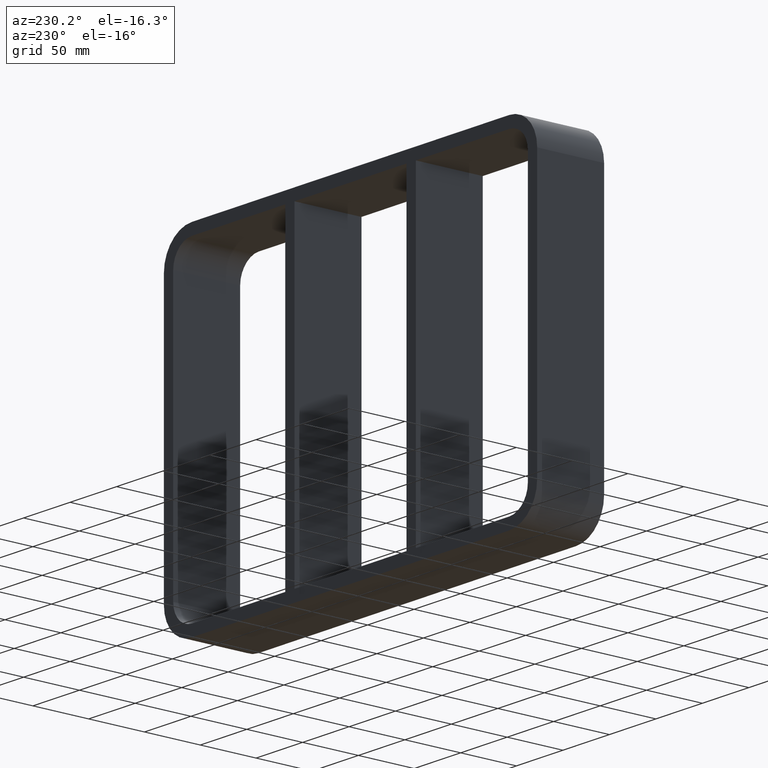
[diagram: clean part render]
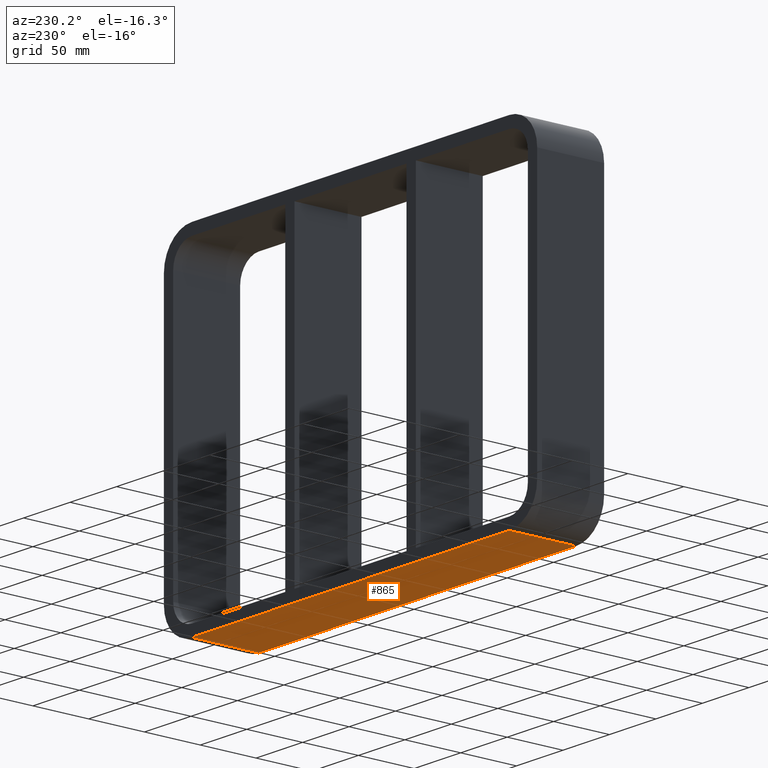
[diagram: same view with one face highlighted and labeled with its STEP entity id]
A machine part, auxiliary view. The second image highlights one B-rep face of the part: STEP entity #865.
In plain terms, the highlighted planar face has unit normal (0, 0, -1).
Its self-contained STEP definition (entity closure, byte-faithful):
#401=CARTESIAN_POINT('',(170.75000000000003,57.0,-149.0));
#402=VERTEX_POINT('',#401);
#420=CARTESIAN_POINT('',(170.75000000000003,-3.0,-149.0));
#421=VERTEX_POINT('',#420);
#429=CARTESIAN_POINT('',(170.75000000000003,-3.0,-149.0));
#430=DIRECTION('',(0.0,1.0,0.0));
#431=VECTOR('',#430,60.0);
#432=LINE('',#429,#431);
#433=EDGE_CURVE('',#421,#402,#432,.T.);
#486=CARTESIAN_POINT('',(-170.75000000000003,-3.0,-149.0));
#487=VERTEX_POINT('',#486);
#495=CARTESIAN_POINT('',(-170.75000000000003,-3.0,-149.0));
#496=DIRECTION('',(1.0,0.0,0.0));
#497=VECTOR('',#496,341.50000000000006);
#498=LINE('',#495,#497);
#499=EDGE_CURVE('',#487,#421,#498,.T.);
#624=CARTESIAN_POINT('',(-170.75000000000003,57.0,-149.0));
#625=VERTEX_POINT('',#624);
#633=CARTESIAN_POINT('',(-170.75000000000003,57.0,-149.0));
#634=DIRECTION('',(0.0,-1.0,0.0));
#635=VECTOR('',#634,60.0);
#636=LINE('',#633,#635);
#637=EDGE_CURVE('',#625,#487,#636,.T.);
#849=CARTESIAN_POINT('',(200.75000000000003,0.0,-149.0));
#850=DIRECTION('',(0.0,0.0,-1.0));
#851=DIRECTION('',(-1.0,0.0,0.0));
#852=AXIS2_PLACEMENT_3D('',#849,#850,#851);
#853=PLANE('',#852);
#854=ORIENTED_EDGE('',*,*,#433,.F.);
#855=ORIENTED_EDGE('',*,*,#499,.F.);
#856=ORIENTED_EDGE('',*,*,#637,.F.);
#857=CARTESIAN_POINT('',(170.75000000000003,57.0,-149.0));
#858=DIRECTION('',(-1.0,0.0,0.0));
#859=VECTOR('',#858,341.50000000000006);
#860=LINE('',#857,#859);
#861=EDGE_CURVE('',#402,#625,#860,.T.);
#862=ORIENTED_EDGE('',*,*,#861,.F.);
#863=EDGE_LOOP('',(#854,#855,#856,#862));
#864=FACE_OUTER_BOUND('',#863,.T.);
#865=ADVANCED_FACE('',(#864),#853,.T.);